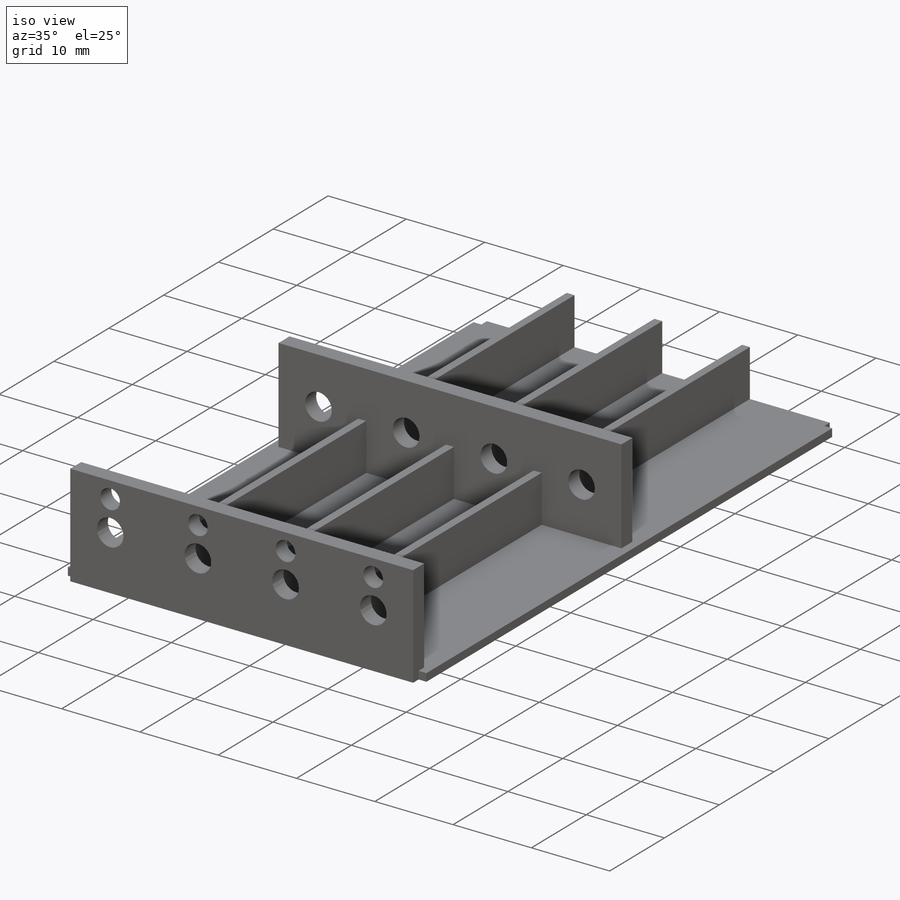
[diagram: iso view]
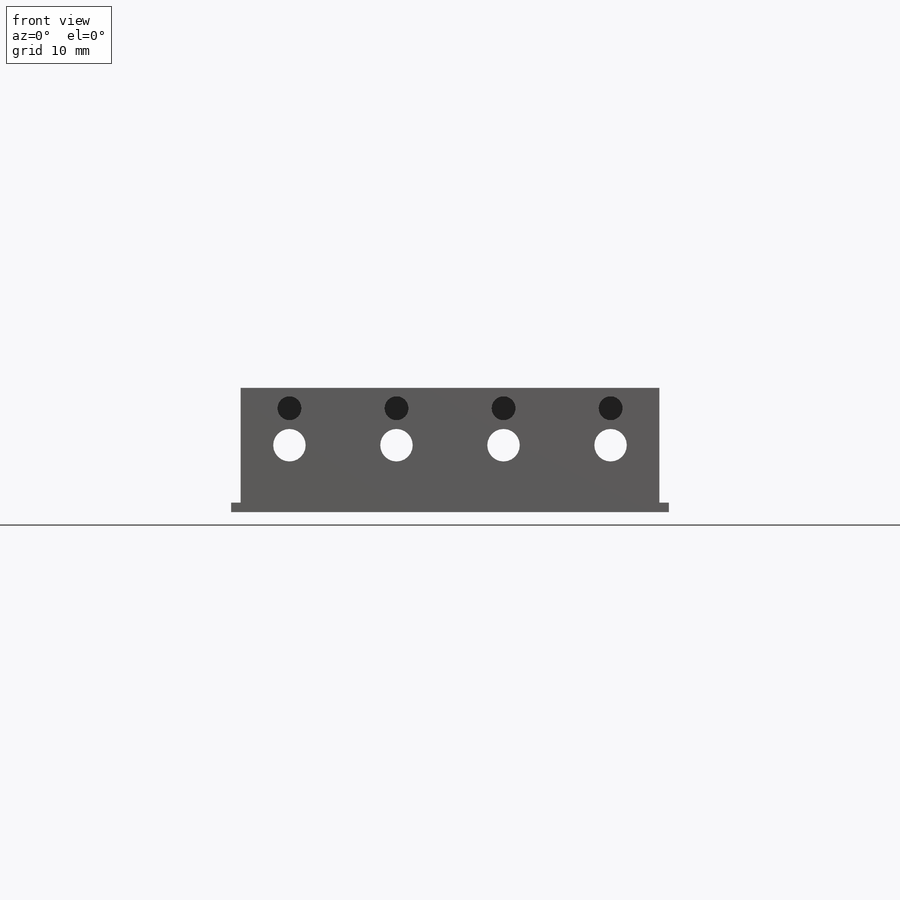
[diagram: front view]
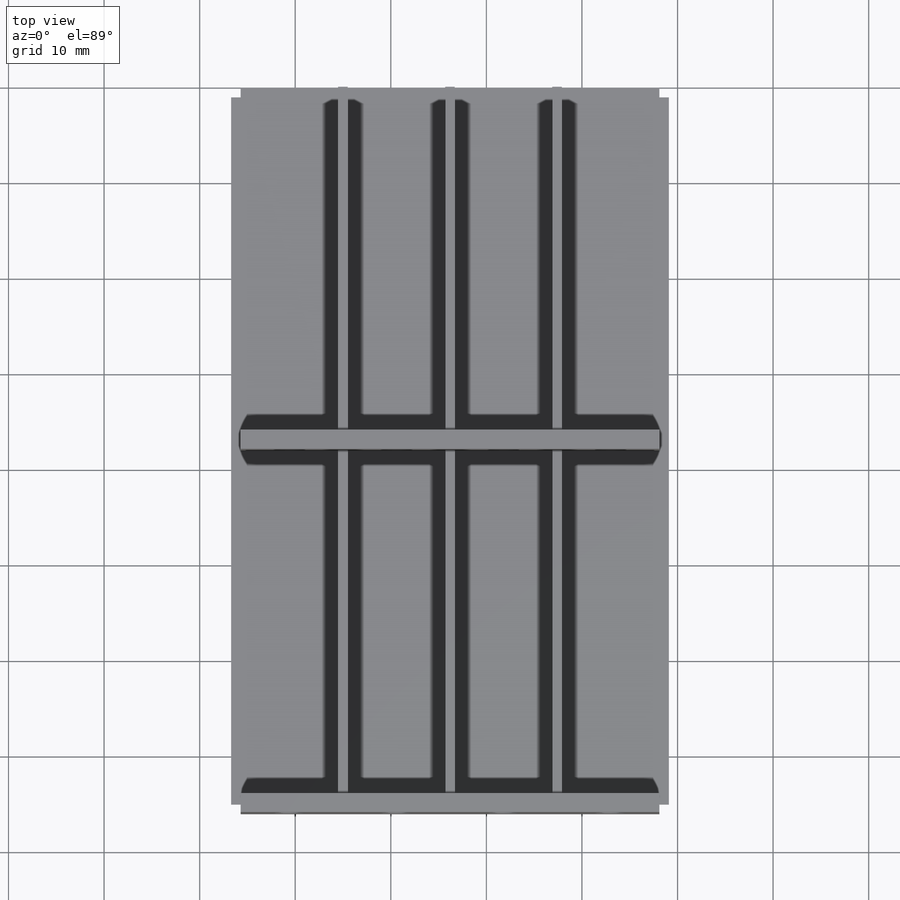
[diagram: top view]
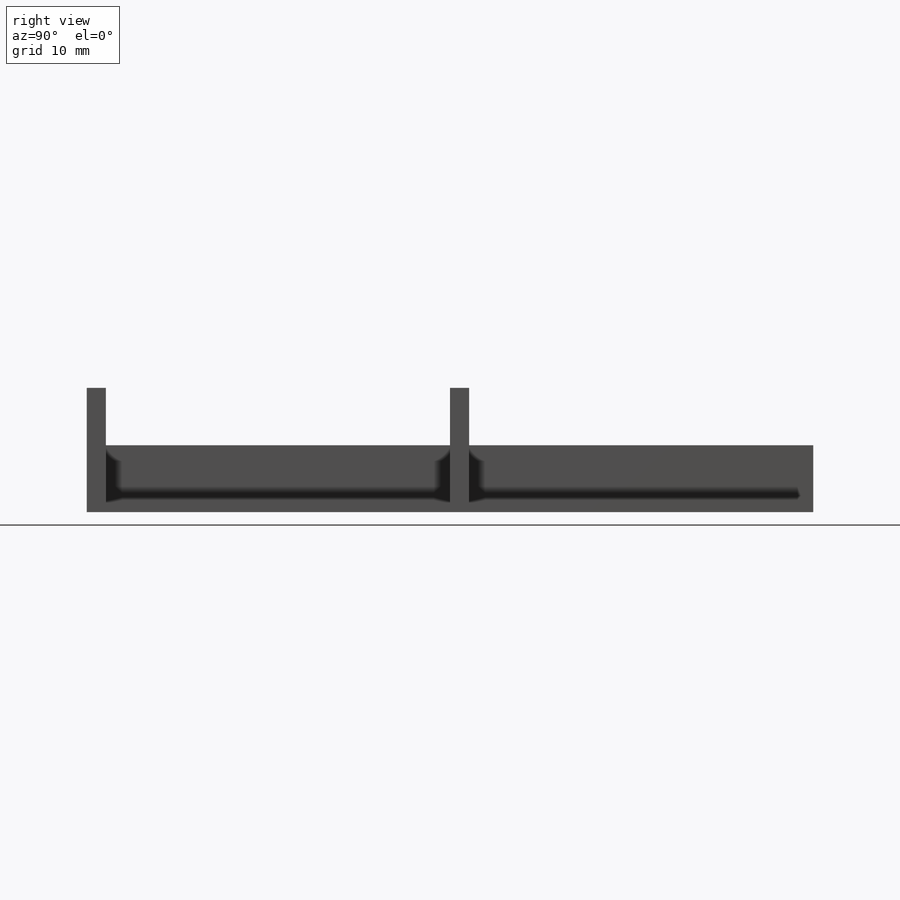
[diagram: right view]
SOLIDWORKS PART (.sldprt)
format: sldprt  version: not decoded by parser v0  size: 372,736 bytes
history: native  units: mm
features: sketch x4, extrude x3, material x1, cut_extrude x1 (+13 scaffold rows collapsed)
feature tree (22):
  scaffold x13  (default folders/planes/origin — collapsed)
  material  "Material <not specified>"
  sketch  "Sketch2"  dims[c1.D1=16.0mm c1.D2=14.2mm c2.D1=45.8mm]
  extrude  "Gearbox Mount"  Depth=76mm
  sketch  "Sketch7"  dims[c1.D1=12.0mm c1.D2=10.2mm c2.D1=~8.038782mm]
  extrude  "Boss-Extrude6"  Depth=2mm
  sketch  "Sketch8"  dims[c1.D1=12.0mm c1.D2=10.2mm c2.D1=~4.429319mm]
  extrude  "Boss-Extrude7"  Depth=2mm
  sketch  "Sketch9"  dims[c1.D1=1.0mm c1.D2=1.0mm c2.D1=1.0mm c2.D2=1.0mm c3.D1=1.0mm c3.D2=1.0mm c4.D1=1.0mm c4.D2=1.0mm]
  cut_extrude  "Cut-Extrude1"  [1 undecoded]
decode coverage: 7 of 8 modeling features carry decoded parameters
note: ~ marks probable driven/reference dimensions
note: 1 parameter value undecoded
note: suppression state not decoded; provenance and decode notes live in map.json
